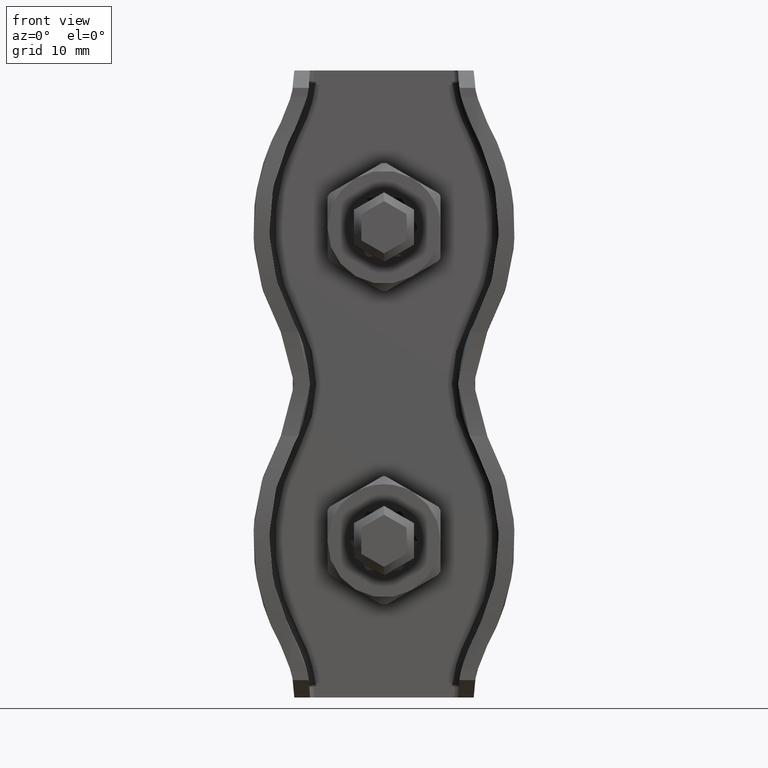
[diagram: clean part render]
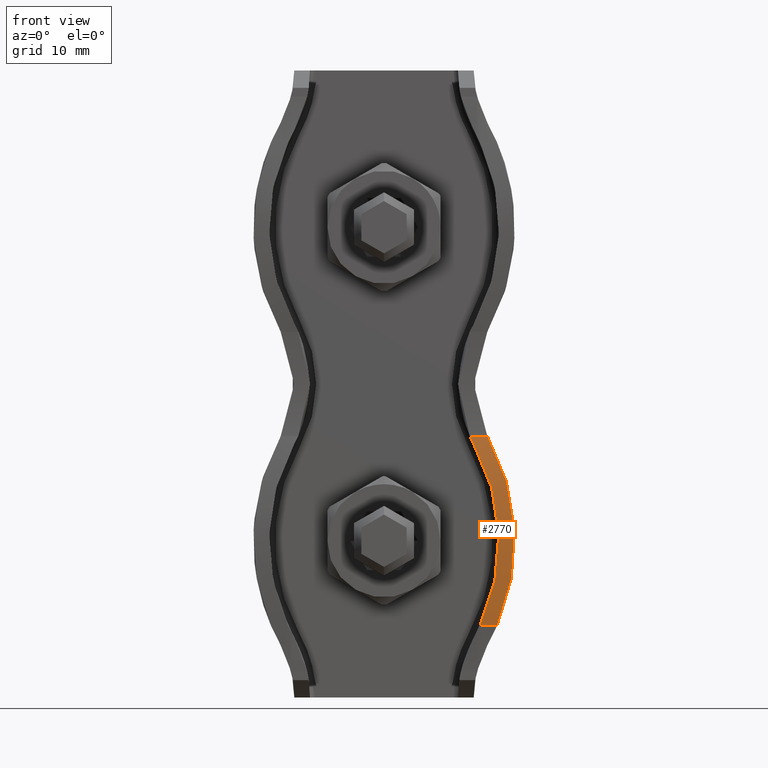
[diagram: same view with one face highlighted and labeled with its STEP entity id]
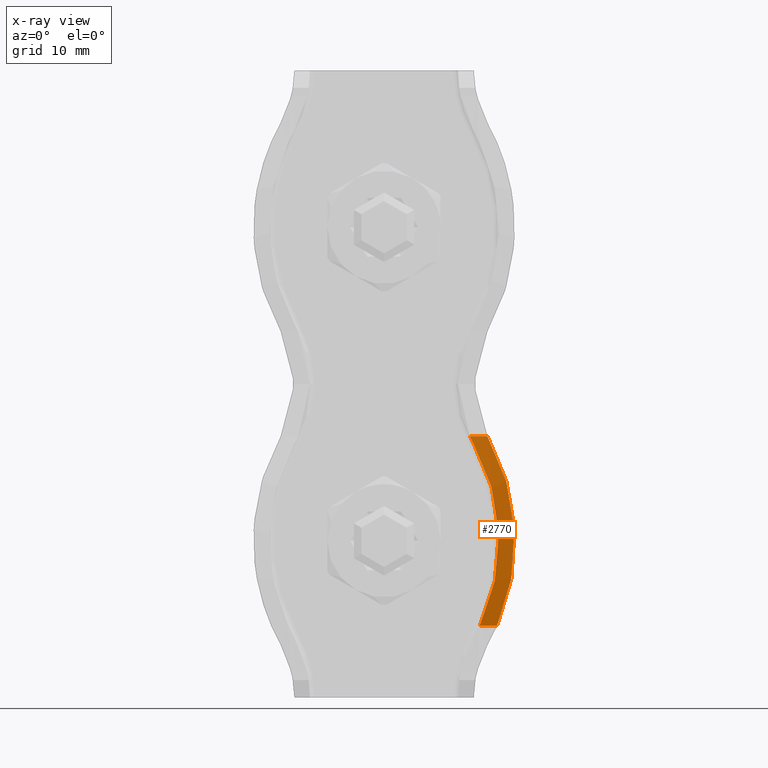
[diagram: x-ray of the same camera — body ghosted, the highlighted face saturated]
A machine part, front view. The second image highlights one B-rep face of the part: STEP entity #2770.
The next image is the same camera in x-ray: the body ghosted, the highlighted face saturated — about 0% of this face is hidden behind the body in this view.
In plain terms, the highlighted cylindrical surface (partial cylindrical patch) has radius 64.0961 mm, axis along (1, 0, 0).
Its self-contained STEP definition (entity closure, byte-faithful):
#43 = CARTESIAN_POINT ( 'NONE',  ( 13.50598114756661872, -11.34100658835783726, -9.361216069202184187 ) ) ;
#935 = CARTESIAN_POINT ( 'NONE',  ( 9.983728433329508434, -10.82350061559595567, -6.298201786612475317 ) ) ;
#1193 = CARTESIAN_POINT ( 'NONE',  ( 11.18239629727864326, -11.20651040283895306, -8.460838846206032215 ) ) ;
#1351 = CARTESIAN_POINT ( 'NONE',  ( 12.86473433043033765, -11.78176121560744072, -14.08264295006858724 ) ) ;
#1714 = CARTESIAN_POINT ( 'NONE',  ( 10.99450882936744911, -11.15091792706875751, -27.77063573388577211 ) ) ;
#1914 = CARTESIAN_POINT ( 'NONE',  ( 14.15908799199522150, -11.58259080339258951, -11.61299940750677351 ) ) ;
#2770 = ADVANCED_FACE ( 'NONE', ( #22886 ), #4352, .T. ) ;
#2967 = CARTESIAN_POINT ( 'NONE',  ( 10.13479389449563506, -10.87721696745867028, -6.591562005637367605 ) ) ;
#3305 = CARTESIAN_POINT ( 'NONE',  ( 13.07264780831038387, -11.85478648036764504, -15.43027203358896671 ) ) ;
#4352 = CYLINDRICAL_SURFACE ( 'NONE', #13459, 64.09607843137263217 ) ;
#4418 = VERTEX_POINT ( 'NONE', #1714 ) ;
#5024 = CARTESIAN_POINT ( 'NONE',  ( 9.843172437928584984, -10.76666666666666750, -6.000000000000003553 ) ) ;
#5034 = CARTESIAN_POINT ( 'NONE',  ( 10.99450882936744911, -11.15091792706875751, -27.77063573388577211 ) ) ;
#5367 = CARTESIAN_POINT ( 'NONE',  ( 14.87708504899997841, -11.85300865837837669, -20.49896438579180469 ) ) ;
#5440 = CARTESIAN_POINT ( 'NONE',  ( 14.27721699111886799, -11.62663041530372077, -12.06847819437594893 ) ) ;
#5593 = CARTESIAN_POINT ( 'NONE',  ( 14.48790285040423775, -11.70557042010451099, -12.98997110579954928 ) ) ;
#6304 = DIRECTION ( 'NONE',  ( 1.000000000000000000, -0.000000000000000000, -0.000000000000000000 ) ) ;
#6543 = DIRECTION ( 'NONE',  ( 1.000000000000000000, -0.000000000000000000, -0.000000000000000000 ) ) ;
#6806 = VERTEX_POINT ( 'NONE', #24003 ) ;
#6917 = CARTESIAN_POINT ( 'NONE',  ( 13.21753093318560346, -11.90621688135706968, -18.13752888714990874 ) ) ;
#7170 = CARTESIAN_POINT ( 'NONE',  ( 12.34851211341003641, -11.60186022577299703, -24.42532532893563513 ) ) ;
#7327 = CARTESIAN_POINT ( 'NONE',  ( 13.72325818017522892, -11.41812883715961924, -26.03819897035393538 ) ) ;
#7480 = CARTESIAN_POINT ( 'NONE',  ( 14.92066558783529118, -11.86965508711289274, -20.02756210937793924 ) ) ;
#7490 = ORIENTED_EDGE ( 'NONE', *, *, #9599, .F. ) ;
#7848 = VECTOR ( 'NONE', #6304, 1000.000000000000000 ) ;
#8181 = CARTESIAN_POINT ( 'NONE',  ( -15.00000000000000355, -10.76666666666666750, -6.000000000000003553 ) ) ;
#9059 = LINE ( 'NONE', #17244, #7848 ) ;
#9292 = CARTESIAN_POINT ( 'NONE',  ( 14.91901905699157815, -11.86901667021594342, -15.79724868947694461 ) ) ;
#9599 = EDGE_CURVE ( 'NONE', #4418, #20459, #19968, .T. ) ;
#9714 = EDGE_CURVE ( 'NONE', #18046, #6806, #12533, .T. ) ;
#10066 = ORIENTED_EDGE ( 'NONE', *, *, #11477, .F. ) ;
#10852 = VECTOR ( 'NONE', #6543, 1000.000000000000000 ) ;
#10968 = CARTESIAN_POINT ( 'NONE',  ( 12.97151138308429452, -11.15091792706875751, -27.77063573388577211 ) ) ;
#11477 = EDGE_CURVE ( 'NONE', #18309, #18046, #20836, .T. ) ;
#11504 = EDGE_CURVE ( 'NONE', #4418, #6806, #9059, .T. ) ;
#11816 = DIRECTION ( 'NONE',  ( 1.000000000000000000, -0.000000000000000000, -0.000000000000000000 ) ) ;
#11841 = ORIENTED_EDGE ( 'NONE', *, *, #11504, .T. ) ;
#11890 = DIRECTION ( 'NONE',  ( 0.000000000000000000, 0.000000000000000000, -1.000000000000000000 ) ) ;
#12533 = B_SPLINE_CURVE_WITH_KNOTS ( 'NONE', 3,
 ( #16612, #22360, #43, #1914, #5440, #5593, #20583, #18545, #9292, #24312, #13070, #7480, #5367, #20659, #22506, #18628, #7327, #10968 ),
 .UNSPECIFIED., .F., .F.,
 ( 4, 2, 2, 2, 2, 2, 2, 2, 4 ),
 ( 5.485677294651095664E-18, 0.005642848731476339356, 0.007053560914345425280, 0.008464273097214510336, 0.01128569746295268565, 0.01410712182869086097, 0.01551783401155995036, 0.01692854619442903802, 0.02257139492590539906 ),
 .UNSPECIFIED. ) ;
#13070 = CARTESIAN_POINT ( 'NONE',  ( 15.01044942466823606, -11.90397843871978623, -18.61463475726603178 ) ) ;
#13202 = ORIENTED_EDGE ( 'NONE', *, *, #17377, .F. ) ;
#13459 = AXIS2_PLACEMENT_3D ( 'NONE', #19004, #11816, #11890 ) ;
#13975 = CARTESIAN_POINT ( 'NONE',  ( 9.843172437928584984, -10.76666666666666750, -6.000000000000003553 ) ) ;
#14032 = CARTESIAN_POINT ( 'NONE',  ( 10.29644504801257021, -10.92802886282409602, -6.880002311537467108 ) ) ;
#14375 = CARTESIAN_POINT ( 'NONE',  ( 11.77461687397596712, -11.40386346969394182, -26.13068713647870212 ) ) ;
#14460 = CARTESIAN_POINT ( 'NONE',  ( 12.58827377891478072, -11.68541634847307975, -12.74053032930430440 ) ) ;
#14622 = CARTESIAN_POINT ( 'NONE',  ( 12.81136218065598520, -11.76305963539080679, -22.21106697287580545 ) ) ;
#15975 = CARTESIAN_POINT ( 'NONE',  ( 10.29644504801257021, -10.92802886282409602, -6.880002311537467108 ) ) ;
#16612 = CARTESIAN_POINT ( 'NONE',  ( 11.86666666666667425, -10.76666666666666750, -6.000000000000003553 ) ) ;
#16618 = EDGE_LOOP ( 'NONE', ( #10066, #13202, #7490, #11841, #17293 ) ) ;
#17244 = CARTESIAN_POINT ( 'NONE',  ( -15.00000000000000355, -11.15091792706875751, -27.77063573388577211 ) ) ;
#17293 = ORIENTED_EDGE ( 'NONE', *, *, #9714, .F. ) ;
#17377 = EDGE_CURVE ( 'NONE', #20459, #18309, #24079, .T. ) ;
#18046 = VERTEX_POINT ( 'NONE', #20620 ) ;
#18212 = CARTESIAN_POINT ( 'NONE',  ( 13.07706822412518122, -11.85646861588161194, -20.40516261483222848 ) ) ;
#18309 = VERTEX_POINT ( 'NONE', #13975 ) ;
#18545 = CARTESIAN_POINT ( 'NONE',  ( 14.81683817114475232, -11.82991648672370921, -14.86036107230304815 ) ) ;
#18628 = CARTESIAN_POINT ( 'NONE',  ( 14.26846408209508610, -11.62267255237101615, -24.24169583691672614 ) ) ;
#19004 = CARTESIAN_POINT ( 'NONE',  ( -15.00000000000000355, 52.19607843137263359, -18.00000000000000355 ) ) ;
#19968 = B_SPLINE_CURVE_WITH_KNOTS ( 'NONE', 3,
 ( #5034, #14375, #7170, #14622, #20268, #20025, #18212, #23834, #6917, #20350, #3305, #1351, #21882, #14460, #22206, #23660, #1193, #20106 ),
 .UNSPECIFIED., .F., .F.,
 ( 4, 2, 2, 2, 2, 2, 2, 2, 4 ),
 ( 1.440969542111313559E-17, 0.005425337637804548453, 0.006781672047255681880, 0.008138006456706816175, 0.01085067527560909170, 0.01356334409451135856, 0.01491967850396249198, 0.01627601291341362541, 0.02170135055121814524 ),
 .UNSPECIFIED. ) ;
#20025 = CARTESIAN_POINT ( 'NONE',  ( 13.02391212634547202, -11.83769417020057801, -20.86137732704704817 ) ) ;
#20106 = CARTESIAN_POINT ( 'NONE',  ( 10.29644504801257021, -10.92802886282409602, -6.880002311537467108 ) ) ;
#20268 = CARTESIAN_POINT ( 'NONE',  ( 12.89102939842259765, -11.79097924846440115, -21.76403550394201503 ) ) ;
#20350 = CARTESIAN_POINT ( 'NONE',  ( 13.15668640272748391, -11.88463604604713098, -16.33110497076221534 ) ) ;
#20459 = VERTEX_POINT ( 'NONE', #15975 ) ;
#20583 = CARTESIAN_POINT ( 'NONE',  ( 14.58068903123144722, -11.74055801704376378, -13.45760945804541109 ) ) ;
#20620 = CARTESIAN_POINT ( 'NONE',  ( 11.86666666666667425, -10.76666666666666750, -6.000000000000003553 ) ) ;
#20659 = CARTESIAN_POINT ( 'NONE',  ( 14.76202341812429353, -11.80922304104269038, -21.44263902510763486 ) ) ;
#20836 = LINE ( 'NONE', #8181, #10852 ) ;
#21882 = CARTESIAN_POINT ( 'NONE',  ( 12.78145260908126879, -11.75260571417878275, -13.63271336217512975 ) ) ;
#22206 = CARTESIAN_POINT ( 'NONE',  ( 12.47879419226723563, -11.64752779367097446, -12.29976113448847741 ) ) ;
#22360 = CARTESIAN_POINT ( 'NONE',  ( 12.78621476729708739, -11.07938200449036259, -7.640784675303362583 ) ) ;
#22506 = CARTESIAN_POINT ( 'NONE',  ( 14.69057887068638379, -11.78209891465975012, -21.91380548451408217 ) ) ;
#22886 = FACE_OUTER_BOUND ( 'NONE', #16618, .T. ) ;
#23660 = CARTESIAN_POINT ( 'NONE',  ( 11.86862143294161598, -11.43806484411843272, -10.12172490571426309 ) ) ;
#23834 = CARTESIAN_POINT ( 'NONE',  ( 13.19433945316404078, -11.89794977828236888, -19.04311974190856560 ) ) ;
#24003 = CARTESIAN_POINT ( 'NONE',  ( 12.97151138308429452, -11.15091792706875751, -27.77063573388577211 ) ) ;
#24079 = B_SPLINE_CURVE_WITH_KNOTS ( 'NONE', 3,
 ( #14032, #2967, #935, #5024 ),
 .UNSPECIFIED., .F., .F.,
 ( 4, 4 ),
 ( 3.127317220692750759E-18, 0.001002944607499529168 ),
 .UNSPECIFIED. ) ;
#24312 = CARTESIAN_POINT ( 'NONE',  ( 15.01582737626284825, -11.90604710971644487, -17.67438546399920796 ) ) ;